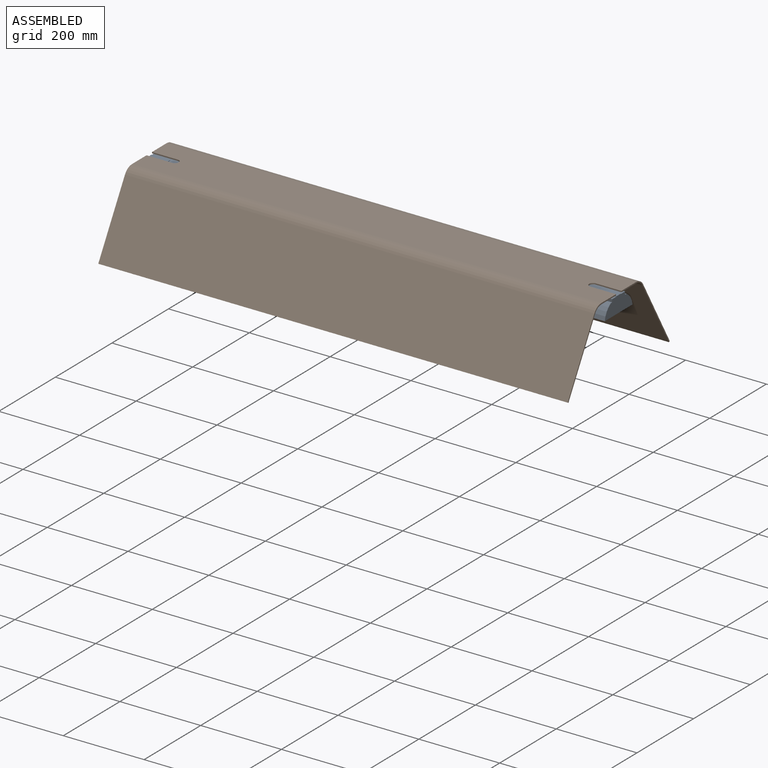
[diagram: assembled view]
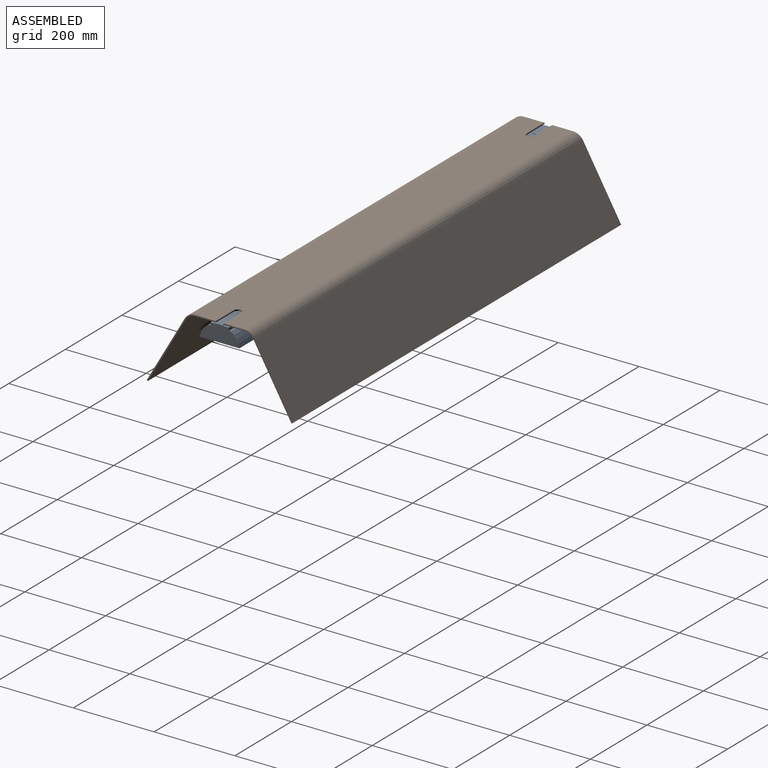
[diagram: assembled view, second angle]
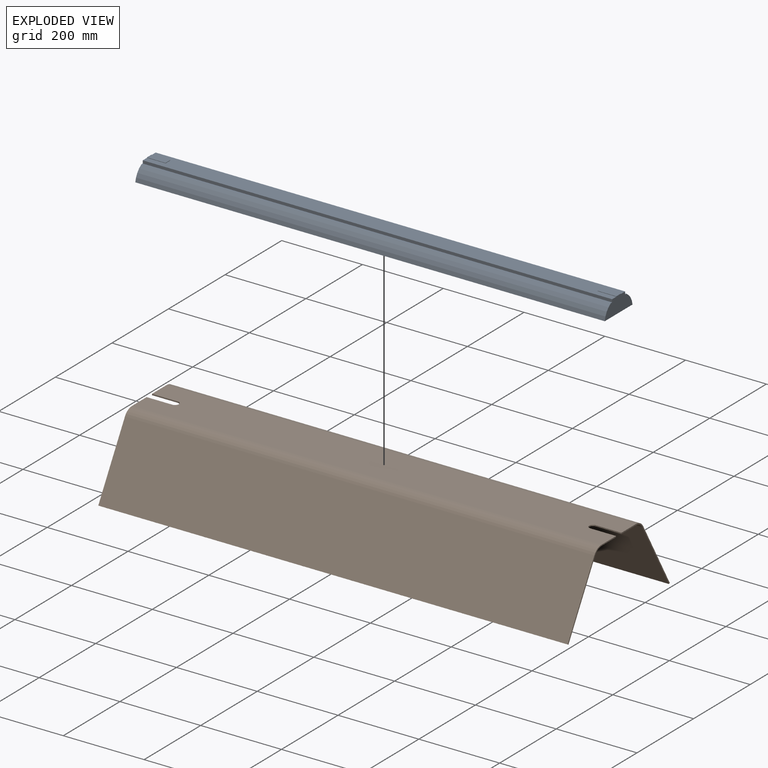
[diagram: exploded view]
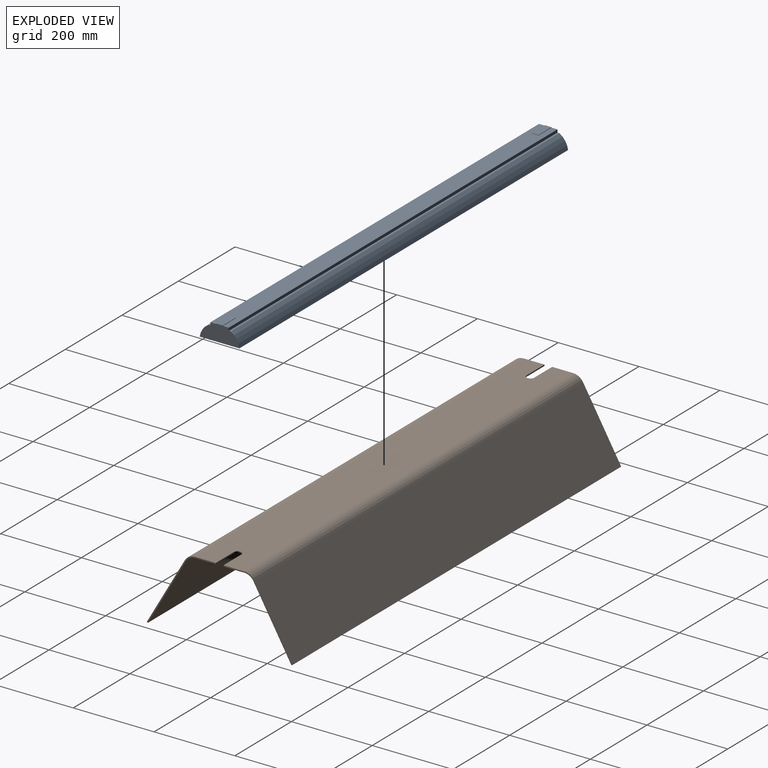
[diagram: exploded view, second angle]
ASSEMBLY  parts=2 mates=2
PART A: 18 faces, bbox 1162.1x98.3x40.2 mm
  f0: plane 1162.05x45.72mm, normal (0,0,1), area 51626mm2, adj f1,f7,f8,f9,f10,f11,f13,f14
  f1: plane 1162.05x7.09mm, normal (0,-1,0), area 8235mm2, adj f0,f2,f8,f9
  f2: plane 1162.05x4.93mm, normal (0,0,1), area 5726.1mm2, adj f1,f3,f8,f9
  f3: cylinder r=44.45mm len=1162.05mm, axis (-1,0,0), area 46324.1mm2, adj f2,f4,f8,f9
  f4: plane 1162.05x98.3mm, normal (0,0,-1), area 114227.2mm2, adj f3,f5,f8,f9
  f5: cylinder r=44.45mm len=1162.05mm, axis (-1,0,0), area 46324.1mm2, adj f4,f6,f8,f9
  f6: plane 1162.05x4.93mm, normal (0,0,1), area 5726.1mm2, adj f5,f7,f8,f9
  f7: plane 1162.05x7.09mm, normal (0,1,0), area 8235mm2, adj f0,f6,f8,f9
  f8: plane 98.3x40.18mm, normal (1,0,0), area 3036.8mm2, adj f0,f1,f2,f3,f4,f5,f6,f7
  f9: plane 98.3x40.18mm, normal (-1,0,0), area 3036.8mm2, adj f0,f1,f2,f3,f4,f5,f6,f7
  f10: plane 46.23x1.02mm, normal (0,-1,0), area 47mm2, adj f0,f9,f12,f13
  f11: plane 46.23x1.02mm, normal (0,1,0), area 47mm2, adj f0,f9,f12,f13
  f12: plane 46.23x16.26mm, normal (0,0,1), area 751.5mm2, adj f9,f10,f11,f13
  f13: plane 16.26x1.02mm, normal (1,0,0), area 16.5mm2, adj f0,f10,f11,f12
  f14: plane 46.23x1.02mm, normal (0,-1,0), area 47mm2, adj f0,f8,f16,f17
  f15: plane 46.23x1.02mm, normal (0,1,0), area 47mm2, adj f0,f8,f16,f17
  f16: plane 46.23x16.26mm, normal (0,0,1), area 751.5mm2, adj f8,f14,f15,f17
  f17: plane 16.26x1.02mm, normal (-1,0,0), area 16.5mm2, adj f0,f14,f15,f16
PART B: 22 faces, bbox 1162.1x360.8x179 mm
  f0: plane 178.99x170.88mm, normal (1,0,0), area 808.3mm2, adj f1,f2,f4,f5,f6,f7,f13,f19
  f1: plane 1162.05x123.07mm, normal (0,0,1), area 140307.4mm2, adj f0,f3,f7,f8,f14,f15,f16,f17
  f2: plane 1162.05x123.07mm, normal (0,0,-1), area 140309.8mm2, adj f0,f3,f12,f13,f14,f15,f16,f17
  f3: plane 178.99x170.87mm, normal (-1,0,0), area 806.2mm2, adj f1,f2,f8,f9,f10,f11,f12,f18
  f4: plane 1162.05x163.28mm, normal (0,-0.87,-0.5), area 219087.4mm2, adj f0,f5,f13,f15
  f5: plane 1162.05x2.6mm, normal (0,0.5,-0.87), area 3494.7mm2, adj f0,f4,f6,f15
  f6: plane 1162.05x163.28mm, normal (0,0.87,0.5), area 219096.7mm2, adj f0,f5,f7,f15
  f7: cylinder r=28.4mm len=1162.05mm, axis (-1,0,0), area 34556.4mm2, adj f0,f1,f6,f15
  f8: cylinder r=28.4mm len=1162.05mm, axis (-1,0,0), area 34556.4mm2, adj f1,f3,f9,f14
  f9: plane 1162.05x163.29mm, normal (0,-0.87,0.5), area 219103.5mm2, adj f3,f8,f10,f14
  f10: plane 1162.05x2.6mm, normal (0,-0.5,-0.87), area 3482.9mm2, adj f3,f9,f11,f14
  f11: plane 1162.05x163.28mm, normal (0,0.87,-0.5), area 219087.4mm2, adj f3,f10,f12,f14
  f12: cylinder r=25.4mm len=1162.05mm, axis (-1,0,0), area 30909.2mm2, adj f2,f3,f11,f14
  f13: cylinder r=25.4mm len=1162.05mm, axis (-1,0,0), area 30909.2mm2, adj f0,f2,f4,f15
  f14: plane 178.99x170.87mm, normal (1,0,0), area 806.2mm2, adj f1,f2,f8,f9,f10,f11,f12,f21
  f15: plane 178.99x170.88mm, normal (-1,0,0), area 808.3mm2, adj f1,f2,f4,f5,f6,f7,f13,f17
  f16: cylinder r=9.53mm len=19.05mm, axis (0,0,1), area 90mm2, adj f1,f2,f17,f18
  f17: plane 63.5x3.01mm, normal (0,-1,0), area 191.1mm2, adj f1,f2,f15,f16
  f18: plane 63.5x3.01mm, normal (0,1,0), area 191.1mm2, adj f1,f2,f3,f16
  f19: plane 63.5x3.01mm, normal (0,-1,0), area 191.1mm2, adj f0,f1,f2,f20
  f20: cylinder r=9.53mm len=19.05mm, axis (0,0,-1), area 90mm2, adj f1,f2,f19,f21
  f21: plane 63.5x3.01mm, normal (0,1,0), area 191.1mm2, adj f1,f2,f14,f20
PLACE A t=(-350.61,-109.89,-240.61)mm
PLACE B t=(-350.61,-109.63,-198.27)mm
MATE parallel A.f0 <-> B.f1  axis (0,0,1) through (811.44,-101.76,-201.44)mm
MATE parallel B.f0 <-> A.f8  axis (1,0,0) through (811.44,-100.11,-198.27)mm
